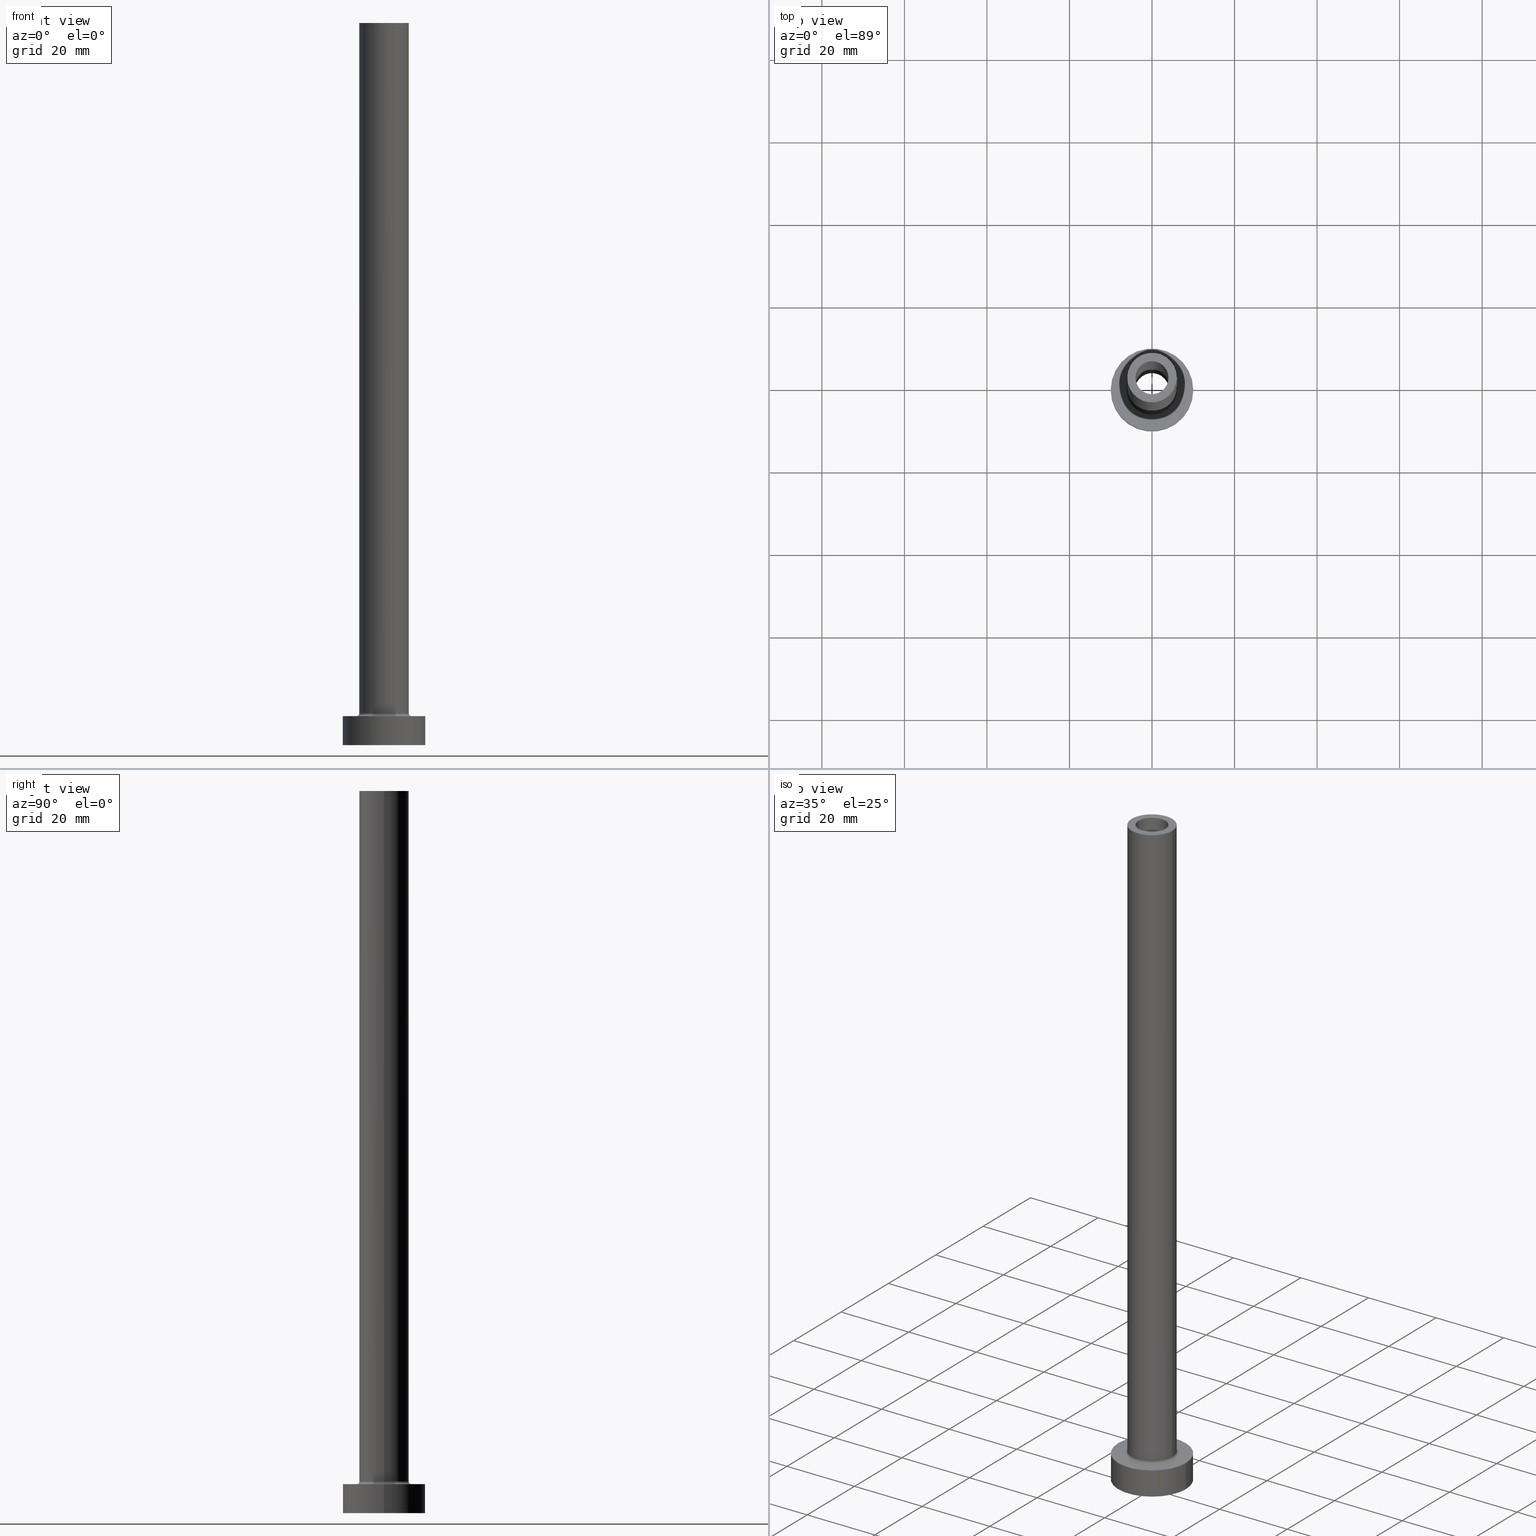
[diagram: canonical four-view strip — front | top / right | iso, engineering-drawing reading convention]
A machine part, canonical four-view strip (front | top / right | iso — engineering-drawing reading convention). The complete STEP part file that produces these views, byte-faithful:
ISO-10303-21;
HEADER;
FILE_DESCRIPTION (( 'STEP AP203' ),
    '1' );
FILE_NAME ('c20e.STEP',
    '2023-02-13T09:10:24',
    ( '' ),
    ( '' ),
    'SwSTEP 2.0',
    'SolidWorks 2019',
    '' );
FILE_SCHEMA (( 'CONFIG_CONTROL_DESIGN' ));
ENDSEC;

DATA;
#1 =( LENGTH_UNIT ( ) NAMED_UNIT ( * ) SI_UNIT ( .MILLI., .METRE. ) );
#2 = CARTESIAN_POINT ( 'NONE',  ( 0.000000000000000000, 0.000000000000000000, 0.000000000000000000 ) ) ;
#3 = AXIS2_PLACEMENT_3D ( 'NONE', #71, #265, #262 ) ;
#4 = SECURITY_CLASSIFICATION ( '', '', #302 ) ;
#5 = DIRECTION ( 'NONE',  ( 1.000000000000000000, 0.000000000000000000, -0.000000000000000000 ) ) ;
#6 = VERTEX_POINT ( 'NONE', #258 ) ;
#7 = EDGE_CURVE ( 'NONE', #109, #211, #100, .T. ) ;
#8 = APPROVAL_ROLE ( '' ) ;
#9 = DIRECTION ( 'NONE',  ( 0.000000000000000000, 0.000000000000000000, 1.000000000000000000 ) ) ;
#10 = CALENDAR_DATE ( 2023, 13, 2 ) ;
#11 = CARTESIAN_POINT ( 'NONE',  ( 0.000000000000000000, 0.000000000000000000, 175.0000000000000284 ) ) ;
#12 = AXIS2_PLACEMENT_3D ( 'NONE', #364, #67, #220 ) ;
#13 = CARTESIAN_POINT ( 'NONE',  ( -10.00000000000000000, 0.000000000000000000, 7.000000000000000000 ) ) ;
#14 = EDGE_CURVE ( 'NONE', #181, #79, #228, .T. ) ;
#15 = ORIENTED_EDGE ( 'NONE', *, *, #189, .T. ) ;
#16 = APPLICATION_CONTEXT ( 'configuration controlled 3d designs of mechanical parts and assemblies' ) ;
#17 = DIRECTION ( 'NONE',  ( -1.000000000000000000, 0.000000000000000000, 0.000000000000000000 ) ) ;
#18 = PERSON_AND_ORGANIZATION ( #322, #232 ) ;
#19 = DIRECTION ( 'NONE',  ( -0.000000000000000000, -0.000000000000000000, -1.000000000000000000 ) ) ;
#20 = VECTOR ( 'NONE', #86, 1000.000000000000000 ) ;
#21 = CYLINDRICAL_SURFACE ( 'NONE', #244, 10.00000000000000000 ) ;
#22 = EDGE_CURVE ( 'NONE', #351, #60, #138, .T. ) ;
#23 = CYLINDRICAL_SURFACE ( 'NONE', #130, 6.000000000000000888 ) ;
#24 = FACE_OUTER_BOUND ( 'NONE', #398, .T. ) ;
#25 = AXIS2_PLACEMENT_3D ( 'NONE', #2, #9, #145 ) ;
#26 = FACE_OUTER_BOUND ( 'NONE', #312, .T. ) ;
#27 = EDGE_CURVE ( 'NONE', #402, #379, #441, .T. ) ;
#28 = APPROVAL_PERSON_ORGANIZATION ( #360, #399, #8 ) ;
#29 = CARTESIAN_POINT ( 'NONE',  ( -6.700000000000001066, 8.205133554287267548E-16, 7.700000000000012612 ) ) ;
#30 = CARTESIAN_POINT ( 'NONE',  ( 0.000000000000000000, 0.000000000000000000, 7.700000000000012612 ) ) ;
#31 = CARTESIAN_POINT ( 'NONE',  ( 0.000000000000000000, 0.000000000000000000, 141.7379725676967155 ) ) ;
#32 = ORIENTED_EDGE ( 'NONE', *, *, #14, .F. ) ;
#33 = AXIS2_PLACEMENT_3D ( 'NONE', #35, #169, #137 ) ;
#34 = CC_DESIGN_APPROVAL ( #140, ( #88 ) ) ;
#35 = CARTESIAN_POINT ( 'NONE',  ( 0.000000000000000000, 0.000000000000000000, 7.000000000000000000 ) ) ;
#36 = VERTEX_POINT ( 'NONE', #400 ) ;
#37 = CARTESIAN_POINT ( 'NONE',  ( 0.000000000000000000, 0.000000000000000000, 175.0000000000000284 ) ) ;
#38 = ORIENTED_EDGE ( 'NONE', *, *, #354, .T. ) ;
#39 = ORIENTED_EDGE ( 'NONE', *, *, #403, .F. ) ;
#40 = ADVANCED_FACE ( 'NONE', ( #331 ), #429, .F. ) ;
#41 = CIRCLE ( 'NONE', #412, 4.000000000000000000 ) ;
#42 = PERSON_AND_ORGANIZATION ( #322, #232 ) ;
#43 = ORIENTED_EDGE ( 'NONE', *, *, #105, .T. ) ;
#44 = ORIENTED_EDGE ( 'NONE', *, *, #270, .F. ) ;
#45 = CC_DESIGN_PERSON_AND_ORGANIZATION_ASSIGNMENT ( #42, #256, ( #383 ) ) ;
#46 = CARTESIAN_POINT ( 'NONE',  ( -4.000000000000000000, 0.000000000000000000, 175.0000000000000284 ) ) ;
#47 = CARTESIAN_POINT ( 'NONE',  ( 0.000000000000000000, 0.000000000000000000, 0.000000000000000000 ) ) ;
#48 = ORIENTED_EDGE ( 'NONE', *, *, #276, .T. ) ;
#49 = CYLINDRICAL_SURFACE ( 'NONE', #104, 10.00000000000000000 ) ;
#50 = PERSON_AND_ORGANIZATION ( #322, #232 ) ;
#51 = DIRECTION ( 'NONE',  ( 1.000000000000000000, 0.000000000000000000, 0.000000000000000000 ) ) ;
#52 = ADVANCED_FACE ( 'NONE', ( #111, #263 ), #122, .F. ) ;
#53 = AXIS2_PLACEMENT_3D ( 'NONE', #178, #76, #5 ) ;
#54 = DIRECTION ( 'NONE',  ( 1.000000000000000000, 0.000000000000000000, 0.000000000000000000 ) ) ;
#55 = DIRECTION ( 'NONE',  ( 1.000000000000000000, 0.000000000000000000, 0.000000000000000000 ) ) ;
#56 = CC_DESIGN_PERSON_AND_ORGANIZATION_ASSIGNMENT ( #85, #406, ( #4 ) ) ;
#57 = CARTESIAN_POINT ( 'NONE',  ( 0.000000000000000000, 0.000000000000000000, 175.0000000000000284 ) ) ;
#58 = CIRCLE ( 'NONE', #12, 6.000000000000000888 ) ;
#59 = DIRECTION ( 'NONE',  ( 1.000000000000000000, 0.000000000000000000, -0.000000000000000000 ) ) ;
#60 = VERTEX_POINT ( 'NONE', #442 ) ;
#61 = DIRECTION ( 'NONE',  ( 0.000000000000000000, 0.000000000000000000, 1.000000000000000000 ) ) ;
#62 = ORIENTED_EDGE ( 'NONE', *, *, #176, .F. ) ;
#63 = DIRECTION ( 'NONE',  ( 1.000000000000000000, 0.000000000000000000, 0.000000000000000000 ) ) ;
#64 = DIRECTION ( 'NONE',  ( 0.000000000000000000, 0.000000000000000000, 1.000000000000000000 ) ) ;
#65 = ORIENTED_EDGE ( 'NONE', *, *, #212, .T. ) ;
#66 = AXIS2_PLACEMENT_3D ( 'NONE', #455, #129, #418 ) ;
#67 = DIRECTION ( 'NONE',  ( 0.000000000000000000, 0.000000000000000000, 1.000000000000000000 ) ) ;
#68 = EDGE_CURVE ( 'NONE', #211, #109, #348, .T. ) ;
#69 =( NAMED_UNIT ( * ) PLANE_ANGLE_UNIT ( ) SI_UNIT ( $, .RADIAN. ) );
#70 = ORIENTED_EDGE ( 'NONE', *, *, #390, .T. ) ;
#71 = CARTESIAN_POINT ( 'NONE',  ( 0.000000000000000000, 0.000000000000000000, 0.000000000000000000 ) ) ;
#72 = ORIENTED_EDGE ( 'NONE', *, *, #105, .F. ) ;
#73 = VECTOR ( 'NONE', #425, 1000.000000000000000 ) ;
#74 = PERSON_AND_ORGANIZATION_ROLE ( 'creator' ) ;
#75 = EDGE_LOOP ( 'NONE', ( #231, #422, #266, #456 ) ) ;
#76 = DIRECTION ( 'NONE',  ( 0.000000000000000000, 0.000000000000000000, 1.000000000000000000 ) ) ;
#77 = EDGE_LOOP ( 'NONE', ( #291, #431, #131, #216 ) ) ;
#78 = AXIS2_PLACEMENT_3D ( 'NONE', #91, #126, #55 ) ;
#79 = VERTEX_POINT ( 'NONE', #376 ) ;
#80 = AXIS2_PLACEMENT_3D ( 'NONE', #81, #164, #17 ) ;
#81 = CARTESIAN_POINT ( 'NONE',  ( 0.000000000000000000, 0.000000000000000000, 175.0000000000000284 ) ) ;
#82 = COORDINATED_UNIVERSAL_TIME_OFFSET ( 1, 0, .AHEAD. ) ;
#83 = ADVANCED_FACE ( 'NONE', ( #89 ), #23, .T. ) ;
#84 = CARTESIAN_POINT ( 'NONE',  ( 0.000000000000000000, 0.000000000000000000, 141.7379725676967155 ) ) ;
#85 = PERSON_AND_ORGANIZATION ( #322, #232 ) ;
#86 = DIRECTION ( 'NONE',  ( -0.000000000000000000, -0.000000000000000000, -1.000000000000000000 ) ) ;
#87 = AXIS2_PLACEMENT_3D ( 'NONE', #37, #110, #357 ) ;
#88 = PRODUCT_DEFINITION_FORMATION_WITH_SPECIFIED_SOURCE ( 'LIBOVOLN�', '', #383, .NOT_KNOWN. ) ;
#89 = FACE_OUTER_BOUND ( 'NONE', #143, .T. ) ;
#90 = EDGE_CURVE ( 'NONE', #458, #179, #334, .T. ) ;
#91 = CARTESIAN_POINT ( 'NONE',  ( 0.000000000000000000, 0.000000000000000000, 130.0000000000000000 ) ) ;
#92 = CARTESIAN_POINT ( 'NONE',  ( 0.000000000000000000, 0.000000000000000000, 7.000000000000000000 ) ) ;
#93 = EDGE_LOOP ( 'NONE', ( #44, #191, #368, #358 ) ) ;
#94 = VECTOR ( 'NONE', #248, 1000.000000000000000 ) ;
#95 = LINE ( 'NONE', #286, #73 ) ;
#96 = ORIENTED_EDGE ( 'NONE', *, *, #27, .F. ) ;
#97 = CARTESIAN_POINT ( 'NONE',  ( 6.000000000000000888, 7.347880794884119736E-16, 175.0000000000000284 ) ) ;
#98 = EDGE_CURVE ( 'NONE', #419, #6, #375, .T. ) ;
#99 = ORIENTED_EDGE ( 'NONE', *, *, #184, .F. ) ;
#100 = CIRCLE ( 'NONE', #146, 4.150000000000000355 ) ;
#101 = ORIENTED_EDGE ( 'NONE', *, *, #90, .F. ) ;
#102 = CARTESIAN_POINT ( 'NONE',  ( 4.150000000000000355, 5.082284216461514170E-16, 0.000000000000000000 ) ) ;
#103 = ORIENTED_EDGE ( 'NONE', *, *, #382, .T. ) ;
#104 = AXIS2_PLACEMENT_3D ( 'NONE', #333, #19, #157 ) ;
#105 = EDGE_CURVE ( 'NONE', #458, #181, #405, .T. ) ;
#106 = ORIENTED_EDGE ( 'NONE', *, *, #335, .T. ) ;
#107 = ORIENTED_EDGE ( 'NONE', *, *, #432, .T. ) ;
#108 = FACE_BOUND ( 'NONE', #361, .T. ) ;
#109 = VERTEX_POINT ( 'NONE', #342 ) ;
#110 = DIRECTION ( 'NONE',  ( 0.000000000000000000, 0.000000000000000000, 1.000000000000000000 ) ) ;
#111 = FACE_BOUND ( 'NONE', #416, .T. ) ;
#112 = DIRECTION ( 'NONE',  ( 0.000000000000000000, 0.000000000000000000, 1.000000000000000000 ) ) ;
#113 = ORIENTED_EDGE ( 'NONE', *, *, #22, .F. ) ;
#114 = CLOSED_SHELL ( 'NONE', ( #123, #132, #264, #83, #171, #155, #369, #52, #117, #417, #301, #223, #207, #40 ) ) ;
#115 = APPROVAL_DATE_TIME ( #234, #165 ) ;
#116 = DIRECTION ( 'NONE',  ( -0.000000000000000000, -0.000000000000000000, -1.000000000000000000 ) ) ;
#117 = ADVANCED_FACE ( 'NONE', ( #24 ), #239, .T. ) ;
#118 = CARTESIAN_POINT ( 'NONE',  ( 0.000000000000000000, 0.000000000000000000, 7.000000000000000000 ) ) ;
#119 = PERSON_AND_ORGANIZATION ( #322, #232 ) ;
#120 = DIRECTION ( 'NONE',  ( 0.000000000000000000, 0.000000000000000000, -1.000000000000000000 ) ) ;
#121 = CALENDAR_DATE ( 2023, 13, 2 ) ;
#122 = PLANE ( 'NONE',  #454 ) ;
#123 = ADVANCED_FACE ( 'NONE', ( #233 ), #372, .F. ) ;
#124 = COORDINATED_UNIVERSAL_TIME_OFFSET ( 1, 0, .AHEAD. ) ;
#125 = AXIS2_PLACEMENT_3D ( 'NONE', #414, #275, #445 ) ;
#126 = DIRECTION ( 'NONE',  ( 0.000000000000000000, 0.000000000000000000, 1.000000000000000000 ) ) ;
#127 = CARTESIAN_POINT ( 'NONE',  ( 0.000000000000000000, 0.000000000000000000, 175.0000000000000284 ) ) ;
#128 = EDGE_LOOP ( 'NONE', ( #317, #393, #48, #72 ) ) ;
#129 = DIRECTION ( 'NONE',  ( 0.000000000000000000, 0.000000000000000000, 1.000000000000000000 ) ) ;
#130 = AXIS2_PLACEMENT_3D ( 'NONE', #57, #116, #332 ) ;
#131 = ORIENTED_EDGE ( 'NONE', *, *, #255, .T. ) ;
#132 = ADVANCED_FACE ( 'NONE', ( #154 ), #299, .F. ) ;
#133 = CIRCLE ( 'NONE', #295, 4.000000000000000000 ) ;
#134 = CARTESIAN_POINT ( 'NONE',  ( 0.000000000000000000, 0.000000000000000000, 130.0000000000000000 ) ) ;
#135 = VERTEX_POINT ( 'NONE', #411 ) ;
#136 = DIRECTION ( 'NONE',  ( 1.000000000000000000, 0.000000000000000000, 0.000000000000000000 ) ) ;
#137 = DIRECTION ( 'NONE',  ( 1.000000000000000000, 0.000000000000000000, 0.000000000000000000 ) ) ;
#138 = CIRCLE ( 'NONE', #377, 4.150000000000000355 ) ;
#139 = ORIENTED_EDGE ( 'NONE', *, *, #7, .T. ) ;
#140 = APPROVAL ( #160, 'NEUR�EN�' ) ;
#141 = EDGE_LOOP ( 'NONE', ( #103, #396 ) ) ;
#142 = AXIS2_PLACEMENT_3D ( 'NONE', #236, #373, #54 ) ;
#143 = EDGE_LOOP ( 'NONE', ( #285, #38, #107, #218 ) ) ;
#144 = COORDINATED_UNIVERSAL_TIME_OFFSET ( 1, 0, .AHEAD. ) ;
#145 = DIRECTION ( 'NONE',  ( 1.000000000000000000, 0.000000000000000000, 0.000000000000000000 ) ) ;
#146 = AXIS2_PLACEMENT_3D ( 'NONE', #225, #327, #183 ) ;
#147 = DIRECTION ( 'NONE',  ( 1.000000000000000000, 0.000000000000000000, 0.000000000000000000 ) ) ;
#148 = EDGE_LOOP ( 'NONE', ( #243, #246 ) ) ;
#149 = CIRCLE ( 'NONE', #166, 4.000000000000000000 ) ;
#150 = UNCERTAINTY_MEASURE_WITH_UNIT (LENGTH_MEASURE( 1.000000000000000082E-05 ), #1, 'distance_accuracy_value', 'NONE');
#151 = DIRECTION ( 'NONE',  ( 0.000000000000000000, 0.000000000000000000, 1.000000000000000000 ) ) ;
#152 = CARTESIAN_POINT ( 'NONE',  ( 6.700000000000001066, 0.000000000000000000, 7.700000000000012612 ) ) ;
#153 = APPROVAL_ROLE ( '' ) ;
#154 = FACE_OUTER_BOUND ( 'NONE', #387, .T. ) ;
#155 = ADVANCED_FACE ( 'NONE', ( #193 ), #49, .T. ) ;
#156 = APPROVAL_STATUS ( 'not_yet_approved' ) ;
#157 = DIRECTION ( 'NONE',  ( -1.000000000000000000, 0.000000000000000000, 0.000000000000000000 ) ) ;
#158 = AXIS2_PLACEMENT_3D ( 'NONE', #84, #120, #370 ) ;
#159 = APPROVAL_PERSON_ORGANIZATION ( #199, #140, #448 ) ;
#160 = APPROVAL_STATUS ( 'not_yet_approved' ) ;
#161 = CARTESIAN_POINT ( 'NONE',  ( 10.00000000000000000, 1.224646799147353256E-15, 7.000000000000000000 ) ) ;
#162 = DIRECTION ( 'NONE',  ( 0.000000000000000000, 0.000000000000000000, 1.000000000000000000 ) ) ;
#163 = CALENDAR_DATE ( 2023, 13, 2 ) ;
#164 = DIRECTION ( 'NONE',  ( -0.000000000000000000, -0.000000000000000000, -1.000000000000000000 ) ) ;
#165 = APPROVAL ( #156, 'NEUR�EN�' ) ;
#166 = AXIS2_PLACEMENT_3D ( 'NONE', #407, #162, #51 ) ;
#167 = CC_DESIGN_SECURITY_CLASSIFICATION ( #4, ( #88 ) ) ;
#168 = PLANE ( 'NONE',  #66 ) ;
#169 = DIRECTION ( 'NONE',  ( -0.000000000000000000, -0.000000000000000000, -1.000000000000000000 ) ) ;
#170 = ORIENTED_EDGE ( 'NONE', *, *, #27, .T. ) ;
#171 = ADVANCED_FACE ( 'NONE', ( #300 ), #21, .T. ) ;
#172 = DIRECTION ( 'NONE',  ( 0.000000000000000000, 0.000000000000000000, 1.000000000000000000 ) ) ;
#173 = ORIENTED_EDGE ( 'NONE', *, *, #255, .F. ) ;
#174 = AXIS2_PLACEMENT_3D ( 'NONE', #31, #460, #313 ) ;
#175 = CARTESIAN_POINT ( 'NONE',  ( 4.000000000000000000, 4.898587196589412829E-16, 175.0000000000000284 ) ) ;
#176 = EDGE_CURVE ( 'NONE', #419, #324, #149, .T. ) ;
#177 = LINE ( 'NONE', #452, #380 ) ;
#178 = CARTESIAN_POINT ( 'NONE',  ( 0.000000000000000000, 0.000000000000000000, 175.0000000000000284 ) ) ;
#179 = VERTEX_POINT ( 'NONE', #161 ) ;
#180 = LOCAL_TIME ( 10, 10, 24.00000000000000000, #124 ) ;
#181 = VERTEX_POINT ( 'NONE', #303 ) ;
#182 = CARTESIAN_POINT ( 'NONE',  ( 6.000000000000000888, 7.347880794884119736E-16, 7.700000000000012612 ) ) ;
#183 = DIRECTION ( 'NONE',  ( 1.000000000000000000, 0.000000000000000000, 0.000000000000000000 ) ) ;
#184 = EDGE_CURVE ( 'NONE', #179, #79, #271, .T. ) ;
#185 = ORIENTED_EDGE ( 'NONE', *, *, #241, .T. ) ;
#186 =( NAMED_UNIT ( * ) SI_UNIT ( $, .STERADIAN. ) SOLID_ANGLE_UNIT ( ) );
#187 = DIRECTION ( 'NONE',  ( 0.000000000000000000, 0.000000000000000000, -1.000000000000000000 ) ) ;
#188 = AXIS2_PLACEMENT_3D ( 'NONE', #224, #112, #319 ) ;
#189 = EDGE_CURVE ( 'NONE', #36, #379, #435, .T. ) ;
#190 = APPLICATION_CONTEXT ( 'configuration controlled 3d designs of mechanical parts and assemblies' ) ;
#191 = ORIENTED_EDGE ( 'NONE', *, *, #403, .T. ) ;
#192 = COORDINATED_UNIVERSAL_TIME_OFFSET ( 1, 0, .AHEAD. ) ;
#193 = FACE_OUTER_BOUND ( 'NONE', #347, .T. ) ;
#194 = AXIS2_PLACEMENT_3D ( 'NONE', #152, #288, #187 ) ;
#195 = VECTOR ( 'NONE', #305, 1000.000000000000000 ) ;
#196 = CALENDAR_DATE ( 2023, 13, 2 ) ;
#197 = DIRECTION ( 'NONE',  ( -0.000000000000000000, -0.000000000000000000, -1.000000000000000000 ) ) ;
#198 = VECTOR ( 'NONE', #362, 1000.000000000000000 ) ;
#199 = PERSON_AND_ORGANIZATION ( #322, #232 ) ;
#200 = FACE_BOUND ( 'NONE', #141, .T. ) ;
#201 = DIRECTION ( 'NONE',  ( 0.000000000000000000, 0.000000000000000000, 1.000000000000000000 ) ) ;
#202 = FACE_BOUND ( 'NONE', #298, .T. ) ;
#203 = CIRCLE ( 'NONE', #87, 4.000000000000000000 ) ;
#204 = AXIS2_PLACEMENT_3D ( 'NONE', #30, #206, #310 ) ;
#205 = LOCAL_TIME ( 10, 10, 24.00000000000000000, #192 ) ;
#206 = DIRECTION ( 'NONE',  ( 0.000000000000000000, 0.000000000000000000, 1.000000000000000000 ) ) ;
#207 = ADVANCED_FACE ( 'NONE', ( #200, #340 ), #378, .F. ) ;
#208 = CARTESIAN_POINT ( 'NONE',  ( 4.150000000000000355, 5.082284216461514170E-16, 130.0000000000000000 ) ) ;
#209 = ORIENTED_EDGE ( 'NONE', *, *, #439, .F. ) ;
#210 = DIRECTION ( 'NONE',  ( 0.000000000000000000, 0.000000000000000000, 1.000000000000000000 ) ) ;
#211 = VERTEX_POINT ( 'NONE', #208 ) ;
#212 = EDGE_CURVE ( 'NONE', #135, #320, #177, .T. ) ;
#213 = CIRCLE ( 'NONE', #3, 4.150000000000000355 ) ;
#214 = DIRECTION ( 'NONE',  ( -1.000000000000000000, 1.224646799147353454E-16, 0.000000000000000000 ) ) ;
#215 = LOCAL_TIME ( 10, 10, 24.00000000000000000, #366 ) ;
#216 = ORIENTED_EDGE ( 'NONE', *, *, #439, .T. ) ;
#217 = DIRECTION ( 'NONE',  ( 1.000000000000000000, 0.000000000000000000, 0.000000000000000000 ) ) ;
#218 = ORIENTED_EDGE ( 'NONE', *, *, #212, .F. ) ;
#219 = ORIENTED_EDGE ( 'NONE', *, *, #14, .T. ) ;
#220 = DIRECTION ( 'NONE',  ( 1.000000000000000000, 0.000000000000000000, 0.000000000000000000 ) ) ;
#221 = CIRCLE ( 'NONE', #338, 10.00000000000000000 ) ;
#222 = ORIENTED_EDGE ( 'NONE', *, *, #354, .F. ) ;
#223 = ADVANCED_FACE ( 'NONE', ( #284 ), #279, .F. ) ;
#224 = CARTESIAN_POINT ( 'NONE',  ( 0.000000000000000000, 0.000000000000000000, 7.700000000000012612 ) ) ;
#225 = CARTESIAN_POINT ( 'NONE',  ( 0.000000000000000000, 0.000000000000000000, 130.0000000000000000 ) ) ;
#226 = CARTESIAN_POINT ( 'NONE',  ( 4.150000000000000355, 5.082284216461514170E-16, 141.7379725676967155 ) ) ;
#227 = EDGE_LOOP ( 'NONE', ( #261, #426, #170, #249 ) ) ;
#228 = CIRCLE ( 'NONE', #25, 10.00000000000000000 ) ;
#229 = EDGE_CURVE ( 'NONE', #365, #6, #41, .T. ) ;
#230 = DATE_TIME_ROLE ( 'creation_date' ) ;
#231 = ORIENTED_EDGE ( 'NONE', *, *, #176, .T. ) ;
#232 = ORGANIZATION ( 'NEUR�EN�', 'NEUR�EN�', '' ) ;
#233 = FACE_OUTER_BOUND ( 'NONE', #75, .T. ) ;
#234 = DATE_AND_TIME ( #163, #205 ) ;
#235 = CARTESIAN_POINT ( 'NONE',  ( 0.000000000000000000, 0.000000000000000000, 0.000000000000000000 ) ) ;
#236 = CARTESIAN_POINT ( 'NONE',  ( 0.000000000000000000, 0.000000000000000000, 7.000000000000000000 ) ) ;
#237 = CIRCLE ( 'NONE', #287, 6.000000000000000888 ) ;
#238 = DATE_TIME_ROLE ( 'classification_date' ) ;
#239 = CYLINDRICAL_SURFACE ( 'NONE', #80, 6.000000000000000888 ) ;
#240 = CARTESIAN_POINT ( 'NONE',  ( -10.00000000000000000, 0.000000000000000000, 7.000000000000000000 ) ) ;
#241 = EDGE_CURVE ( 'NONE', #320, #402, #237, .T. ) ;
#242 = CARTESIAN_POINT ( 'NONE',  ( 0.000000000000000000, 0.000000000000000000, 130.0000000000000000 ) ) ;
#243 = ORIENTED_EDGE ( 'NONE', *, *, #7, .F. ) ;
#244 = AXIS2_PLACEMENT_3D ( 'NONE', #118, #269, #337 ) ;
#245 = CARTESIAN_POINT ( 'NONE',  ( 0.000000000000000000, 0.000000000000000000, 7.700000000000012612 ) ) ;
#246 = ORIENTED_EDGE ( 'NONE', *, *, #68, .F. ) ;
#247 = VERTEX_POINT ( 'NONE', #97 ) ;
#248 = DIRECTION ( 'NONE',  ( 0.000000000000000000, 0.000000000000000000, -1.000000000000000000 ) ) ;
#249 = ORIENTED_EDGE ( 'NONE', *, *, #189, .F. ) ;
#250 =( GEOMETRIC_REPRESENTATION_CONTEXT ( 3 ) GLOBAL_UNCERTAINTY_ASSIGNED_CONTEXT ( ( #150 ) ) GLOBAL_UNIT_ASSIGNED_CONTEXT ( ( #1, #69, #186 ) ) REPRESENTATION_CONTEXT ( 'NONE', 'WORKASPACE' ) );
#251 = CARTESIAN_POINT ( 'NONE',  ( 4.000000000000000000, 4.898587196589412829E-16, 130.0000000000000000 ) ) ;
#252 = EDGE_LOOP ( 'NONE', ( #389, #363, #384, #96 ) ) ;
#253 = PLANE ( 'NONE',  #53 ) ;
#254 = DIRECTION ( 'NONE',  ( 0.000000000000000000, 0.000000000000000000, -1.000000000000000000 ) ) ;
#255 = EDGE_CURVE ( 'NONE', #109, #60, #343, .T. ) ;
#256 = PERSON_AND_ORGANIZATION_ROLE ( 'design_owner' ) ;
#257 = VECTOR ( 'NONE', #197, 1000.000000000000000 ) ;
#258 = CARTESIAN_POINT ( 'NONE',  ( -4.000000000000000000, 0.000000000000000000, 130.0000000000000000 ) ) ;
#259 = PERSON_AND_ORGANIZATION ( #322, #232 ) ;
#260 = AXIS2_PLACEMENT_3D ( 'NONE', #277, #210, #415 ) ;
#261 = ORIENTED_EDGE ( 'NONE', *, *, #321, .F. ) ;
#262 = DIRECTION ( 'NONE',  ( 1.000000000000000000, 0.000000000000000000, 0.000000000000000000 ) ) ;
#263 = FACE_OUTER_BOUND ( 'NONE', #283, .T. ) ;
#264 = ADVANCED_FACE ( 'NONE', ( #345 ), #359, .F. ) ;
#265 = DIRECTION ( 'NONE',  ( -0.000000000000000000, -0.000000000000000000, -1.000000000000000000 ) ) ;
#266 = ORIENTED_EDGE ( 'NONE', *, *, #382, .F. ) ;
#267 = CARTESIAN_POINT ( 'NONE',  ( -4.000000000000000000, 0.000000000000000000, 175.0000000000000284 ) ) ;
#268 = LOCAL_TIME ( 10, 10, 24.00000000000000000, #144 ) ;
#269 = DIRECTION ( 'NONE',  ( -0.000000000000000000, -0.000000000000000000, -1.000000000000000000 ) ) ;
#270 = EDGE_CURVE ( 'NONE', #324, #365, #388, .T. ) ;
#271 = LINE ( 'NONE', #409, #20 ) ;
#272 = CALENDAR_DATE ( 2023, 13, 2 ) ;
#273 = DIRECTION ( 'NONE',  ( 0.000000000000000000, 0.000000000000000000, 1.000000000000000000 ) ) ;
#274 = CC_DESIGN_APPROVAL ( #165, ( #4 ) ) ;
#275 = DIRECTION ( 'NONE',  ( 0.000000000000000000, 0.000000000000000000, -1.000000000000000000 ) ) ;
#276 = EDGE_CURVE ( 'NONE', #79, #181, #367, .T. ) ;
#277 = CARTESIAN_POINT ( 'NONE',  ( 0.000000000000000000, 0.000000000000000000, 0.000000000000000000 ) ) ;
#278 = EDGE_LOOP ( 'NONE', ( #280, #353 ) ) ;
#279 = CYLINDRICAL_SURFACE ( 'NONE', #174, 4.150000000000000355 ) ;
#280 = ORIENTED_EDGE ( 'NONE', *, *, #453, .T. ) ;
#281 = CIRCLE ( 'NONE', #33, 6.700000000000001066 ) ;
#282 = CARTESIAN_POINT ( 'NONE',  ( -6.000000000000000888, 0.000000000000000000, 7.700000000000012612 ) ) ;
#283 = EDGE_LOOP ( 'NONE', ( #32, #356 ) ) ;
#284 = FACE_OUTER_BOUND ( 'NONE', #77, .T. ) ;
#285 = ORIENTED_EDGE ( 'NONE', *, *, #289, .F. ) ;
#286 = CARTESIAN_POINT ( 'NONE',  ( 6.000000000000000888, 7.347880794884119736E-16, 175.0000000000000284 ) ) ;
#287 = AXIS2_PLACEMENT_3D ( 'NONE', #245, #346, #63 ) ;
#288 = DIRECTION ( 'NONE',  ( 0.000000000000000000, -1.000000000000000000, 0.000000000000000000 ) ) ;
#289 = EDGE_CURVE ( 'NONE', #247, #135, #420, .T. ) ;
#290 = CARTESIAN_POINT ( 'NONE',  ( 0.000000000000000000, 0.000000000000000000, 130.0000000000000000 ) ) ;
#291 = ORIENTED_EDGE ( 'NONE', *, *, #390, .F. ) ;
#292 = DATE_AND_TIME ( #10, #268 ) ;
#293 = DIRECTION ( 'NONE',  ( 1.000000000000000000, 0.000000000000000000, 0.000000000000000000 ) ) ;
#294 = CC_DESIGN_DATE_AND_TIME_ASSIGNMENT ( #401, #230, ( #349 ) ) ;
#295 = AXIS2_PLACEMENT_3D ( 'NONE', #290, #430, #147 ) ;
#296 = ORIENTED_EDGE ( 'NONE', *, *, #90, .T. ) ;
#297 = CARTESIAN_POINT ( 'NONE',  ( 6.700000000000001066, 0.000000000000000000, 7.000000000000006217 ) ) ;
#298 = EDGE_LOOP ( 'NONE', ( #106, #15 ) ) ;
#299 = CYLINDRICAL_SURFACE ( 'NONE', #158, 4.150000000000000355 ) ;
#300 = FACE_OUTER_BOUND ( 'NONE', #128, .T. ) ;
#301 = ADVANCED_FACE ( 'NONE', ( #316 ), #404, .F. ) ;
#302 = SECURITY_CLASSIFICATION_LEVEL ( 'unclassified' ) ;
#303 = CARTESIAN_POINT ( 'NONE',  ( -10.00000000000000000, 0.000000000000000000, 0.000000000000000000 ) ) ;
#304 = PERSON_AND_ORGANIZATION_ROLE ( 'design_supplier' ) ;
#305 = DIRECTION ( 'NONE',  ( 0.000000000000000000, 0.000000000000000000, -1.000000000000000000 ) ) ;
#306 = DIRECTION ( 'NONE',  ( 1.000000000000000000, 0.000000000000000000, -0.000000000000000000 ) ) ;
#307 = EDGE_CURVE ( 'NONE', #179, #458, #221, .T. ) ;
#308 = MANIFOLD_SOLID_BREP ( 'Odebrat vysunut�m4', #114 ) ;
#309 = AXIS2_PLACEMENT_3D ( 'NONE', #355, #151, #217 ) ;
#310 = DIRECTION ( 'NONE',  ( 1.000000000000000000, 0.000000000000000000, 0.000000000000000000 ) ) ;
#311 = DIRECTION ( 'NONE',  ( -0.000000000000000000, -0.000000000000000000, -1.000000000000000000 ) ) ;
#312 = EDGE_LOOP ( 'NONE', ( #296, #314 ) ) ;
#313 = DIRECTION ( 'NONE',  ( -1.000000000000000000, 0.000000000000000000, 0.000000000000000000 ) ) ;
#314 = ORIENTED_EDGE ( 'NONE', *, *, #307, .T. ) ;
#315 = CIRCLE ( 'NONE', #188, 6.000000000000000888 ) ;
#316 = FACE_OUTER_BOUND ( 'NONE', #227, .T. ) ;
#317 = ORIENTED_EDGE ( 'NONE', *, *, #307, .F. ) ;
#318 = DIRECTION ( 'NONE',  ( 1.000000000000000000, 0.000000000000000000, 0.000000000000000000 ) ) ;
#319 = DIRECTION ( 'NONE',  ( 1.000000000000000000, 0.000000000000000000, 0.000000000000000000 ) ) ;
#320 = VERTEX_POINT ( 'NONE', #282 ) ;
#321 = EDGE_CURVE ( 'NONE', #320, #36, #459, .T. ) ;
#322 = PERSON ( 'NEUR�EN�', 'NEUR�EN�', 'NEUR�EN�', ('NEUR�EN�'), ('NEUR�EN�'), ('NEUR�EN�') ) ;
#323 = CC_DESIGN_APPROVAL ( #399, ( #349 ) ) ;
#324 = VERTEX_POINT ( 'NONE', #352 ) ;
#325 = ORIENTED_EDGE ( 'NONE', *, *, #22, .T. ) ;
#326 = APPROVAL_STATUS ( 'not_yet_approved' ) ;
#327 = DIRECTION ( 'NONE',  ( 0.000000000000000000, 0.000000000000000000, 1.000000000000000000 ) ) ;
#328 = PRODUCT_DEFINITION_SHAPE ( 'NONE', 'NONE',  #349 ) ;
#329 = APPLICATION_PROTOCOL_DEFINITION ( 'international standard', 'config_control_design', 1994, #16 ) ;
#330 = VECTOR ( 'NONE', #421, 1000.000000000000000 ) ;
#331 = FACE_OUTER_BOUND ( 'NONE', #93, .T. ) ;
#332 = DIRECTION ( 'NONE',  ( -1.000000000000000000, 0.000000000000000000, 0.000000000000000000 ) ) ;
#333 = CARTESIAN_POINT ( 'NONE',  ( 0.000000000000000000, 0.000000000000000000, 7.000000000000000000 ) ) ;
#334 = CIRCLE ( 'NONE', #394, 10.00000000000000000 ) ;
#335 = EDGE_CURVE ( 'NONE', #379, #36, #281, .T. ) ;
#336 = PRODUCT_RELATED_PRODUCT_CATEGORY ( 'detail', '', ( #383 ) ) ;
#337 = DIRECTION ( 'NONE',  ( -1.000000000000000000, 0.000000000000000000, 0.000000000000000000 ) ) ;
#338 = AXIS2_PLACEMENT_3D ( 'NONE', #92, #172, #381 ) ;
#339 = PERSON_AND_ORGANIZATION_ROLE ( 'creator' ) ;
#340 = FACE_OUTER_BOUND ( 'NONE', #148, .T. ) ;
#341 = CC_DESIGN_PERSON_AND_ORGANIZATION_ASSIGNMENT ( #50, #304, ( #88 ) ) ;
#342 = CARTESIAN_POINT ( 'NONE',  ( -4.150000000000000355, 0.000000000000000000, 130.0000000000000000 ) ) ;
#343 = LINE ( 'NONE', #457, #94 ) ;
#344 = AXIS2_PLACEMENT_3D ( 'NONE', #242, #61, #59 ) ;
#345 = FACE_OUTER_BOUND ( 'NONE', #252, .T. ) ;
#346 = DIRECTION ( 'NONE',  ( 0.000000000000000000, 0.000000000000000000, 1.000000000000000000 ) ) ;
#347 = EDGE_LOOP ( 'NONE', ( #99, #101, #43, #219 ) ) ;
#348 = CIRCLE ( 'NONE', #78, 4.150000000000000355 ) ;
#349 = PRODUCT_DEFINITION ( 'NEZN�M�', '', #88, #451 ) ;
#350 = DIRECTION ( 'NONE',  ( 0.000000000000000000, 0.000000000000000000, 1.000000000000000000 ) ) ;
#351 = VERTEX_POINT ( 'NONE', #102 ) ;
#352 = CARTESIAN_POINT ( 'NONE',  ( 4.000000000000000000, 4.898587196589412829E-16, 175.0000000000000284 ) ) ;
#353 = ORIENTED_EDGE ( 'NONE', *, *, #289, .T. ) ;
#354 = EDGE_CURVE ( 'NONE', #247, #402, #95, .T. ) ;
#355 = CARTESIAN_POINT ( 'NONE',  ( 0.000000000000000000, 0.000000000000000000, 0.000000000000000000 ) ) ;
#356 = ORIENTED_EDGE ( 'NONE', *, *, #276, .F. ) ;
#357 = DIRECTION ( 'NONE',  ( 1.000000000000000000, 0.000000000000000000, 0.000000000000000000 ) ) ;
#358 = ORIENTED_EDGE ( 'NONE', *, *, #229, .F. ) ;
#359 = TOROIDAL_SURFACE ( 'NONE', #204, 6.700000000000001066, 0.6999999999999999556 ) ;
#360 = PERSON_AND_ORGANIZATION ( #322, #232 ) ;
#361 = EDGE_LOOP ( 'NONE', ( #62, #39 ) ) ;
#362 = DIRECTION ( 'NONE',  ( 0.000000000000000000, 0.000000000000000000, -1.000000000000000000 ) ) ;
#363 = ORIENTED_EDGE ( 'NONE', *, *, #321, .T. ) ;
#364 = CARTESIAN_POINT ( 'NONE',  ( 0.000000000000000000, 0.000000000000000000, 175.0000000000000284 ) ) ;
#365 = VERTEX_POINT ( 'NONE', #251 ) ;
#366 = COORDINATED_UNIVERSAL_TIME_OFFSET ( 1, 0, .AHEAD. ) ;
#367 = CIRCLE ( 'NONE', #260, 10.00000000000000000 ) ;
#368 = ORIENTED_EDGE ( 'NONE', *, *, #98, .T. ) ;
#369 = ADVANCED_FACE ( 'NONE', ( #202, #26 ), #168, .T. ) ;
#370 = DIRECTION ( 'NONE',  ( -1.000000000000000000, 0.000000000000000000, 0.000000000000000000 ) ) ;
#371 = AXIS2_PLACEMENT_3D ( 'NONE', #11, #254, #436 ) ;
#372 = CYLINDRICAL_SURFACE ( 'NONE', #125, 4.000000000000000000 ) ;
#373 = DIRECTION ( 'NONE',  ( -0.000000000000000000, -0.000000000000000000, -1.000000000000000000 ) ) ;
#374 = CC_DESIGN_PERSON_AND_ORGANIZATION_ASSIGNMENT ( #259, #74, ( #349 ) ) ;
#375 = LINE ( 'NONE', #267, #195 ) ;
#376 = CARTESIAN_POINT ( 'NONE',  ( 10.00000000000000000, 1.224646799147353256E-15, 0.000000000000000000 ) ) ;
#377 = AXIS2_PLACEMENT_3D ( 'NONE', #47, #434, #293 ) ;
#378 = PLANE ( 'NONE',  #344 ) ;
#379 = VERTEX_POINT ( 'NONE', #297 ) ;
#380 = VECTOR ( 'NONE', #311, 1000.000000000000000 ) ;
#381 = DIRECTION ( 'NONE',  ( 1.000000000000000000, 0.000000000000000000, 0.000000000000000000 ) ) ;
#382 = EDGE_CURVE ( 'NONE', #6, #365, #133, .T. ) ;
#383 = PRODUCT ( 'c20e', 'c20e', '', ( #437 ) ) ;
#384 = ORIENTED_EDGE ( 'NONE', *, *, #335, .F. ) ;
#385 = CC_DESIGN_DATE_AND_TIME_ASSIGNMENT ( #446, #238, ( #4 ) ) ;
#386 = DIRECTION ( 'NONE',  ( 1.000000000000000000, 0.000000000000000000, 0.000000000000000000 ) ) ;
#387 = EDGE_LOOP ( 'NONE', ( #139, #70, #325, #173 ) ) ;
#388 = LINE ( 'NONE', #175, #330 ) ;
#389 = ORIENTED_EDGE ( 'NONE', *, *, #241, .F. ) ;
#390 = EDGE_CURVE ( 'NONE', #211, #351, #428, .T. ) ;
#391 = DIRECTION ( 'NONE',  ( 0.000000000000000000, 0.000000000000000000, 1.000000000000000000 ) ) ;
#392 = FACE_OUTER_BOUND ( 'NONE', #278, .T. ) ;
#393 = ORIENTED_EDGE ( 'NONE', *, *, #184, .T. ) ;
#394 = AXIS2_PLACEMENT_3D ( 'NONE', #450, #273, #447 ) ;
#395 = APPLICATION_PROTOCOL_DEFINITION ( 'international standard', 'config_control_design', 1994, #190 ) ;
#396 = ORIENTED_EDGE ( 'NONE', *, *, #229, .T. ) ;
#397 = AXIS2_PLACEMENT_3D ( 'NONE', #461, #64, #136 ) ;
#398 = EDGE_LOOP ( 'NONE', ( #222, #438, #65, #185 ) ) ;
#399 = APPROVAL ( #326, 'NEUR�EN�' ) ;
#400 = CARTESIAN_POINT ( 'NONE',  ( -6.700000000000001066, 8.205133554287267548E-16, 7.000000000000006217 ) ) ;
#401 = DATE_AND_TIME ( #121, #180 ) ;
#402 = VERTEX_POINT ( 'NONE', #182 ) ;
#403 = EDGE_CURVE ( 'NONE', #324, #419, #203, .T. ) ;
#404 = TOROIDAL_SURFACE ( 'NONE', #397, 6.700000000000001066, 0.6999999999999999556 ) ;
#405 = LINE ( 'NONE', #240, #257 ) ;
#406 = PERSON_AND_ORGANIZATION_ROLE ( 'classification_officer' ) ;
#407 = CARTESIAN_POINT ( 'NONE',  ( 0.000000000000000000, 0.000000000000000000, 175.0000000000000284 ) ) ;
#408 = APPROVAL_DATE_TIME ( #440, #140 ) ;
#409 = CARTESIAN_POINT ( 'NONE',  ( 10.00000000000000000, 1.224646799147353256E-15, 7.000000000000000000 ) ) ;
#410 = SHAPE_DEFINITION_REPRESENTATION ( #328, #449 ) ;
#411 = CARTESIAN_POINT ( 'NONE',  ( -6.000000000000000888, 0.000000000000000000, 175.0000000000000284 ) ) ;
#412 = AXIS2_PLACEMENT_3D ( 'NONE', #134, #391, #386 ) ;
#413 = APPROVAL_PERSON_ORGANIZATION ( #18, #165, #153 ) ;
#414 = CARTESIAN_POINT ( 'NONE',  ( 0.000000000000000000, 0.000000000000000000, 175.0000000000000284 ) ) ;
#415 = DIRECTION ( 'NONE',  ( 1.000000000000000000, 0.000000000000000000, 0.000000000000000000 ) ) ;
#416 = EDGE_LOOP ( 'NONE', ( #209, #113 ) ) ;
#417 = ADVANCED_FACE ( 'NONE', ( #108, #392 ), #253, .T. ) ;
#418 = DIRECTION ( 'NONE',  ( 1.000000000000000000, 0.000000000000000000, -0.000000000000000000 ) ) ;
#419 = VERTEX_POINT ( 'NONE', #46 ) ;
#420 = CIRCLE ( 'NONE', #443, 6.000000000000000888 ) ;
#421 = DIRECTION ( 'NONE',  ( 0.000000000000000000, 0.000000000000000000, -1.000000000000000000 ) ) ;
#422 = ORIENTED_EDGE ( 'NONE', *, *, #270, .T. ) ;
#423 = DIRECTION ( 'NONE',  ( 1.224646799147353207E-16, 1.000000000000000000, -0.000000000000000000 ) ) ;
#424 = CC_DESIGN_PERSON_AND_ORGANIZATION_ASSIGNMENT ( #119, #339, ( #88 ) ) ;
#425 = DIRECTION ( 'NONE',  ( -0.000000000000000000, -0.000000000000000000, -1.000000000000000000 ) ) ;
#426 = ORIENTED_EDGE ( 'NONE', *, *, #432, .F. ) ;
#427 = AXIS2_PLACEMENT_3D ( 'NONE', #29, #423, #214 ) ;
#428 = LINE ( 'NONE', #226, #198 ) ;
#429 = CYLINDRICAL_SURFACE ( 'NONE', #371, 4.000000000000000000 ) ;
#430 = DIRECTION ( 'NONE',  ( 0.000000000000000000, 0.000000000000000000, 1.000000000000000000 ) ) ;
#431 = ORIENTED_EDGE ( 'NONE', *, *, #68, .T. ) ;
#432 = EDGE_CURVE ( 'NONE', #402, #320, #315, .T. ) ;
#433 = APPROVAL_DATE_TIME ( #292, #399 ) ;
#434 = DIRECTION ( 'NONE',  ( -0.000000000000000000, -0.000000000000000000, -1.000000000000000000 ) ) ;
#435 = CIRCLE ( 'NONE', #142, 6.700000000000001066 ) ;
#436 = DIRECTION ( 'NONE',  ( -1.000000000000000000, 0.000000000000000000, 0.000000000000000000 ) ) ;
#437 = MECHANICAL_CONTEXT ( 'NONE', #16, 'mechanical' ) ;
#438 = ORIENTED_EDGE ( 'NONE', *, *, #453, .F. ) ;
#439 = EDGE_CURVE ( 'NONE', #60, #351, #213, .T. ) ;
#440 = DATE_AND_TIME ( #196, #215 ) ;
#441 = CIRCLE ( 'NONE', #194, 0.7000000000000000666 ) ;
#442 = CARTESIAN_POINT ( 'NONE',  ( -4.150000000000000355, 0.000000000000000000, 0.000000000000000000 ) ) ;
#443 = AXIS2_PLACEMENT_3D ( 'NONE', #127, #350, #318 ) ;
#444 = LOCAL_TIME ( 10, 10, 24.00000000000000000, #82 ) ;
#445 = DIRECTION ( 'NONE',  ( -1.000000000000000000, 0.000000000000000000, 0.000000000000000000 ) ) ;
#446 = DATE_AND_TIME ( #272, #444 ) ;
#447 = DIRECTION ( 'NONE',  ( 1.000000000000000000, 0.000000000000000000, 0.000000000000000000 ) ) ;
#448 = APPROVAL_ROLE ( '' ) ;
#449 = ADVANCED_BREP_SHAPE_REPRESENTATION ( 'c20e', ( #308, #309 ), #250 ) ;
#450 = CARTESIAN_POINT ( 'NONE',  ( 0.000000000000000000, 0.000000000000000000, 7.000000000000000000 ) ) ;
#451 = DESIGN_CONTEXT ( 'detailed design', #190, 'design' ) ;
#452 = CARTESIAN_POINT ( 'NONE',  ( -6.000000000000000888, 0.000000000000000000, 175.0000000000000284 ) ) ;
#453 = EDGE_CURVE ( 'NONE', #135, #247, #58, .T. ) ;
#454 = AXIS2_PLACEMENT_3D ( 'NONE', #235, #201, #306 ) ;
#455 = CARTESIAN_POINT ( 'NONE',  ( 0.000000000000000000, 0.000000000000000000, 7.000000000000000000 ) ) ;
#456 = ORIENTED_EDGE ( 'NONE', *, *, #98, .F. ) ;
#457 = CARTESIAN_POINT ( 'NONE',  ( -4.150000000000000355, 0.000000000000000000, 141.7379725676967155 ) ) ;
#458 = VERTEX_POINT ( 'NONE', #13 ) ;
#459 = CIRCLE ( 'NONE', #427, 0.7000000000000000666 ) ;
#460 = DIRECTION ( 'NONE',  ( 0.000000000000000000, 0.000000000000000000, -1.000000000000000000 ) ) ;
#461 = CARTESIAN_POINT ( 'NONE',  ( 0.000000000000000000, 0.000000000000000000, 7.700000000000012612 ) ) ;
ENDSEC;
END-ISO-10303-21;
